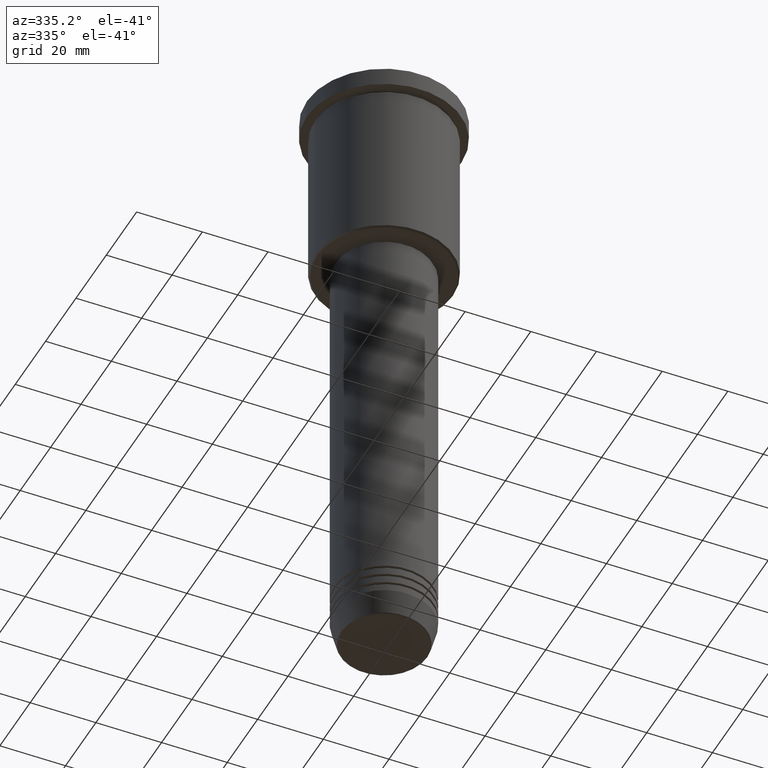
[diagram: clean part render]
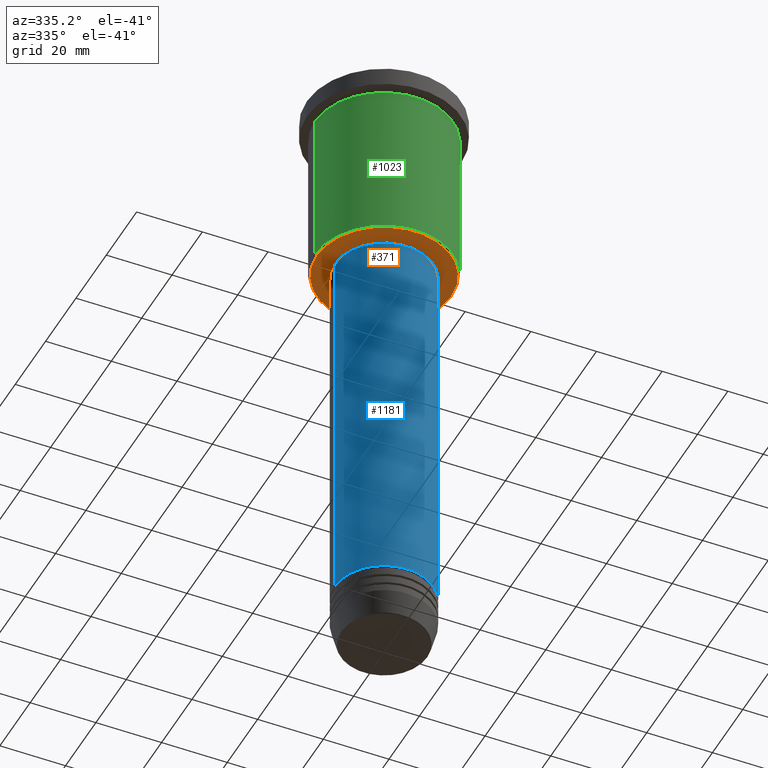
[diagram: same view with three faces highlighted in distinct colors, each labeled with its STEP entity id]
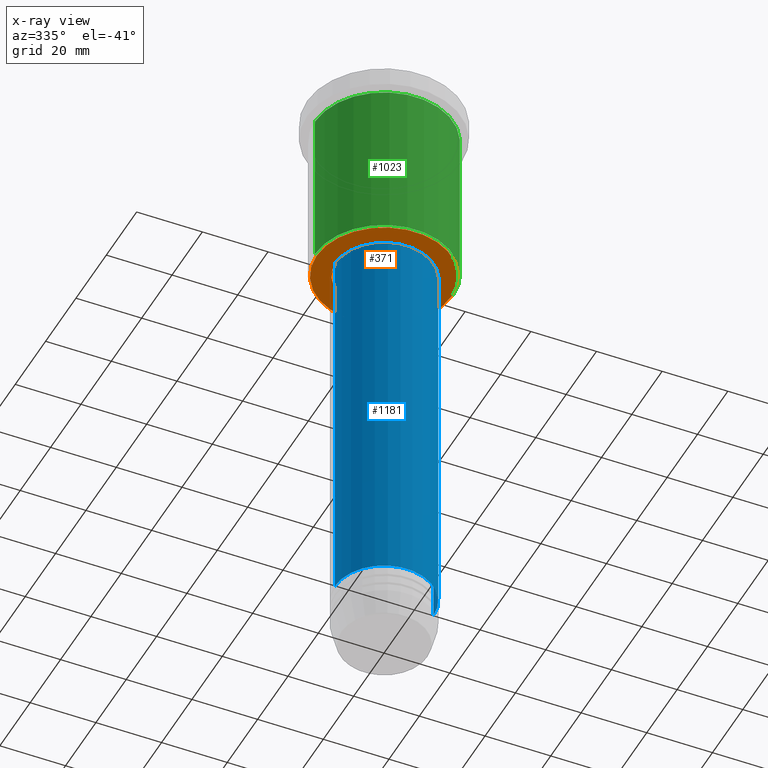
[diagram: x-ray of the same camera — body ghosted, the three highlighted faces saturated]
A machine part, auxiliary view with three faces highlighted in distinct colors.
The next image is the same camera in x-ray (body ghosted, the three faces saturated) — at least one of them is partly hidden behind the body in this view.
Their STEP definitions:

[orange] entity #371 — the highlighted planar face has unit normal (0, 0, -1).
#12 = EDGE_CURVE ( 'NONE', #455, #1165, #1139, .T. ) ;
#41 = CARTESIAN_POINT ( 'NONE',  ( 0.000000000000000000, 0.000000000000000000, -56.00000000000000711 ) ) ;
#57 = CARTESIAN_POINT ( 'NONE',  ( 0.000000000000000000, 0.000000000000000000, -56.00000000000000711 ) ) ;
#120 = DIRECTION ( 'NONE',  ( 1.000000000000000000, 0.000000000000000000, 0.000000000000000000 ) ) ;
#142 = DIRECTION ( 'NONE',  ( -1.000000000000000000, 0.000000000000000000, 0.000000000000000000 ) ) ;
#186 = AXIS2_PLACEMENT_3D ( 'NONE', #41, #659, #216 ) ;
#216 = DIRECTION ( 'NONE',  ( 1.000000000000000000, 0.000000000000000000, 0.000000000000000000 ) ) ;
#220 = ORIENTED_EDGE ( 'NONE', *, *, #287, .T. ) ;
#238 = DIRECTION ( 'NONE',  ( 0.000000000000000000, 0.000000000000000000, -1.000000000000000000 ) ) ;
#246 = CARTESIAN_POINT ( 'NONE',  ( 0.000000000000000000, 0.000000000000000000, -56.00000000000000711 ) ) ;
#285 = CIRCLE ( 'NONE', #608, 14.49999999999999822 ) ;
#287 = EDGE_CURVE ( 'NONE', #1109, #933, #699, .T. ) ;
#290 = EDGE_LOOP ( 'NONE', ( #365, #220 ) ) ;
#338 = DIRECTION ( 'NONE',  ( 0.000000000000000000, 0.000000000000000000, -1.000000000000000000 ) ) ;
#341 = DIRECTION ( 'NONE',  ( -1.000000000000000000, 0.000000000000000000, 0.000000000000000000 ) ) ;
#365 = ORIENTED_EDGE ( 'NONE', *, *, #1037, .T. ) ;
#371 = ADVANCED_FACE ( 'NONE', ( #949, #1018 ), #492, .T. ) ;
#449 = EDGE_CURVE ( 'NONE', #1165, #455, #925, .T. ) ;
#455 = VERTEX_POINT ( 'NONE', #782 ) ;
#492 = PLANE ( 'NONE',  #1057 ) ;
#564 = DIRECTION ( 'NONE',  ( -0.000000000000000000, -0.000000000000000000, 1.000000000000000000 ) ) ;
#585 = AXIS2_PLACEMENT_3D ( 'NONE', #57, #338, #142 ) ;
#608 = AXIS2_PLACEMENT_3D ( 'NONE', #726, #564, #120 ) ;
#611 = CARTESIAN_POINT ( 'NONE',  ( 14.49999999999999822, 0.000000000000000000, -56.00000000000000711 ) ) ;
#641 = ORIENTED_EDGE ( 'NONE', *, *, #449, .T. ) ;
#659 = DIRECTION ( 'NONE',  ( -0.000000000000000000, -0.000000000000000000, 1.000000000000000000 ) ) ;
#699 = CIRCLE ( 'NONE', #186, 14.49999999999999822 ) ;
#726 = CARTESIAN_POINT ( 'NONE',  ( 0.000000000000000000, 0.000000000000000000, -56.00000000000000711 ) ) ;
#777 = AXIS2_PLACEMENT_3D ( 'NONE', #246, #238, #341 ) ;
#782 = CARTESIAN_POINT ( 'NONE',  ( 20.50000000000001776, 0.000000000000000000, -56.00000000000000711 ) ) ;
#802 = DIRECTION ( 'NONE',  ( -1.000000000000000000, 0.000000000000000000, -0.000000000000000000 ) ) ;
#860 = CARTESIAN_POINT ( 'NONE',  ( 0.000000000000000000, 21.00000000000000000, -56.00000000000000711 ) ) ;
#925 = CIRCLE ( 'NONE', #585, 20.50000000000001776 ) ;
#933 = VERTEX_POINT ( 'NONE', #611 ) ;
#949 = FACE_OUTER_BOUND ( 'NONE', #1154, .T. ) ;
#971 = ORIENTED_EDGE ( 'NONE', *, *, #12, .T. ) ;
#980 = CARTESIAN_POINT ( 'NONE',  ( -14.49999999999999822, 1.775737858763662015E-15, -56.00000000000000711 ) ) ;
#1018 = FACE_BOUND ( 'NONE', #290, .T. ) ;
#1037 = EDGE_CURVE ( 'NONE', #933, #1109, #285, .T. ) ;
#1057 = AXIS2_PLACEMENT_3D ( 'NONE', #860, #1163, #802 ) ;
#1109 = VERTEX_POINT ( 'NONE', #980 ) ;
#1130 = CARTESIAN_POINT ( 'NONE',  ( -20.50000000000001776, 2.541142108230759057E-15, -56.00000000000000711 ) ) ;
#1139 = CIRCLE ( 'NONE', #777, 20.50000000000001776 ) ;
#1154 = EDGE_LOOP ( 'NONE', ( #971, #641 ) ) ;
#1163 = DIRECTION ( 'NONE',  ( 0.000000000000000000, 0.000000000000000000, -1.000000000000000000 ) ) ;
#1165 = VERTEX_POINT ( 'NONE', #1130 ) ;

[blue] entity #1181 — the highlighted cylindrical surface (partial cylindrical patch) has radius 15 mm, axis along (-0, -0, 1).
#33 = CARTESIAN_POINT ( 'NONE',  ( 0.000000000000000000, 0.000000000000000000, 0.000000000000000000 ) ) ;
#38 = ORIENTED_EDGE ( 'NONE', *, *, #1075, .F. ) ;
#85 = DIRECTION ( 'NONE',  ( -0.000000000000000000, -0.000000000000000000, 1.000000000000000000 ) ) ;
#87 = EDGE_CURVE ( 'NONE', #346, #277, #272, .T. ) ;
#126 = LINE ( 'NONE', #315, #505 ) ;
#131 = CARTESIAN_POINT ( 'NONE',  ( 15.00000000000000000, 0.000000000000000000, -175.0000000000000000 ) ) ;
#172 = ORIENTED_EDGE ( 'NONE', *, *, #873, .T. ) ;
#208 = CIRCLE ( 'NONE', #468, 15.00000000000000000 ) ;
#221 = CYLINDRICAL_SURFACE ( 'NONE', #947, 15.00000000000000000 ) ;
#272 = LINE ( 'NONE', #645, #426 ) ;
#277 = VERTEX_POINT ( 'NONE', #1026 ) ;
#315 = CARTESIAN_POINT ( 'NONE',  ( -15.00000000000000000, 1.836970198721029589E-15, 0.000000000000000000 ) ) ;
#346 = VERTEX_POINT ( 'NONE', #131 ) ;
#350 = CARTESIAN_POINT ( 'NONE',  ( -15.00000000000000000, 1.836970198721029589E-15, -175.0000000000000000 ) ) ;
#412 = EDGE_LOOP ( 'NONE', ( #1164, #172, #556, #38 ) ) ;
#426 = VECTOR ( 'NONE', #1092, 1000.000000000000000 ) ;
#468 = AXIS2_PLACEMENT_3D ( 'NONE', #965, #958, #1049 ) ;
#501 = VERTEX_POINT ( 'NONE', #350 ) ;
#505 = VECTOR ( 'NONE', #1040, 1000.000000000000000 ) ;
#553 = VERTEX_POINT ( 'NONE', #983 ) ;
#556 = ORIENTED_EDGE ( 'NONE', *, *, #87, .T. ) ;
#593 = FACE_OUTER_BOUND ( 'NONE', #412, .T. ) ;
#634 = CARTESIAN_POINT ( 'NONE',  ( 0.000000000000000000, 0.000000000000000000, -57.00000000000001421 ) ) ;
#645 = CARTESIAN_POINT ( 'NONE',  ( 15.00000000000000000, 0.000000000000000000, 0.000000000000000000 ) ) ;
#663 = DIRECTION ( 'NONE',  ( 1.000000000000000000, 0.000000000000000000, 0.000000000000000000 ) ) ;
#873 = EDGE_CURVE ( 'NONE', #501, #346, #208, .T. ) ;
#911 = CIRCLE ( 'NONE', #1160, 15.00000000000000000 ) ;
#947 = AXIS2_PLACEMENT_3D ( 'NONE', #33, #951, #1051 ) ;
#951 = DIRECTION ( 'NONE',  ( -0.000000000000000000, -0.000000000000000000, 1.000000000000000000 ) ) ;
#958 = DIRECTION ( 'NONE',  ( -0.000000000000000000, -0.000000000000000000, 1.000000000000000000 ) ) ;
#965 = CARTESIAN_POINT ( 'NONE',  ( 0.000000000000000000, 0.000000000000000000, -175.0000000000000000 ) ) ;
#983 = CARTESIAN_POINT ( 'NONE',  ( -15.00000000000000000, 1.836970198721029589E-15, -57.00000000000001421 ) ) ;
#1026 = CARTESIAN_POINT ( 'NONE',  ( 15.00000000000000000, 0.000000000000000000, -57.00000000000001421 ) ) ;
#1040 = DIRECTION ( 'NONE',  ( -0.000000000000000000, -0.000000000000000000, 1.000000000000000000 ) ) ;
#1049 = DIRECTION ( 'NONE',  ( 1.000000000000000000, 0.000000000000000000, 0.000000000000000000 ) ) ;
#1051 = DIRECTION ( 'NONE',  ( 1.000000000000000000, 0.000000000000000000, 0.000000000000000000 ) ) ;
#1075 = EDGE_CURVE ( 'NONE', #553, #277, #911, .T. ) ;
#1092 = DIRECTION ( 'NONE',  ( -0.000000000000000000, -0.000000000000000000, 1.000000000000000000 ) ) ;
#1126 = EDGE_CURVE ( 'NONE', #501, #553, #126, .T. ) ;
#1160 = AXIS2_PLACEMENT_3D ( 'NONE', #634, #85, #663 ) ;
#1164 = ORIENTED_EDGE ( 'NONE', *, *, #1126, .F. ) ;
#1181 = ADVANCED_FACE ( 'NONE', ( #593 ), #221, .T. ) ;

[green] entity #1023 — the highlighted cylindrical surface (partial cylindrical patch) has radius 21 mm, axis along (-0, -0, 1).
#8 = AXIS2_PLACEMENT_3D ( 'NONE', #539, #463, #654 ) ;
#103 = LINE ( 'NONE', #1011, #681 ) ;
#127 = DIRECTION ( 'NONE',  ( -1.000000000000000000, 0.000000000000000000, 0.000000000000000000 ) ) ;
#154 = CARTESIAN_POINT ( 'NONE',  ( 21.00000000000000000, 0.000000000000000000, -6.999999999999994671 ) ) ;
#177 = EDGE_CURVE ( 'NONE', #1093, #450, #735, .T. ) ;
#199 = EDGE_CURVE ( 'NONE', #913, #1093, #103, .T. ) ;
#217 = VERTEX_POINT ( 'NONE', #476 ) ;
#249 = AXIS2_PLACEMENT_3D ( 'NONE', #353, #929, #270 ) ;
#270 = DIRECTION ( 'NONE',  ( 1.000000000000000000, 0.000000000000000000, 0.000000000000000000 ) ) ;
#349 = FACE_OUTER_BOUND ( 'NONE', #827, .T. ) ;
#353 = CARTESIAN_POINT ( 'NONE',  ( 0.000000000000000000, 0.000000000000000000, 0.000000000000000000 ) ) ;
#390 = ORIENTED_EDGE ( 'NONE', *, *, #199, .F. ) ;
#399 = EDGE_CURVE ( 'NONE', #217, #450, #805, .T. ) ;
#419 = DIRECTION ( 'NONE',  ( -0.000000000000000000, -0.000000000000000000, 1.000000000000000000 ) ) ;
#450 = VERTEX_POINT ( 'NONE', #154 ) ;
#460 = ORIENTED_EDGE ( 'NONE', *, *, #177, .F. ) ;
#463 = DIRECTION ( 'NONE',  ( -0.000000000000000000, -0.000000000000000000, 1.000000000000000000 ) ) ;
#466 = CYLINDRICAL_SURFACE ( 'NONE', #249, 21.00000000000000000 ) ;
#476 = CARTESIAN_POINT ( 'NONE',  ( 21.00000000000000000, 0.000000000000000000, -55.50000000000002132 ) ) ;
#539 = CARTESIAN_POINT ( 'NONE',  ( 0.000000000000000000, 0.000000000000000000, -6.999999999999994671 ) ) ;
#569 = DIRECTION ( 'NONE',  ( -0.000000000000000000, -0.000000000000000000, 1.000000000000000000 ) ) ;
#654 = DIRECTION ( 'NONE',  ( 1.000000000000000000, 0.000000000000000000, 0.000000000000000000 ) ) ;
#681 = VECTOR ( 'NONE', #991, 1000.000000000000000 ) ;
#735 = CIRCLE ( 'NONE', #8, 21.00000000000000000 ) ;
#752 = CARTESIAN_POINT ( 'NONE',  ( 0.000000000000000000, 0.000000000000000000, -55.50000000000002132 ) ) ;
#775 = EDGE_CURVE ( 'NONE', #913, #217, #1143, .T. ) ;
#794 = ORIENTED_EDGE ( 'NONE', *, *, #399, .T. ) ;
#805 = LINE ( 'NONE', #967, #1038 ) ;
#827 = EDGE_LOOP ( 'NONE', ( #390, #1094, #794, #460 ) ) ;
#899 = CARTESIAN_POINT ( 'NONE',  ( -21.00000000000000000, 2.571758278209441661E-15, -6.999999999999994671 ) ) ;
#913 = VERTEX_POINT ( 'NONE', #1136 ) ;
#929 = DIRECTION ( 'NONE',  ( -0.000000000000000000, -0.000000000000000000, 1.000000000000000000 ) ) ;
#964 = AXIS2_PLACEMENT_3D ( 'NONE', #752, #569, #127 ) ;
#967 = CARTESIAN_POINT ( 'NONE',  ( 21.00000000000000000, 0.000000000000000000, 0.000000000000000000 ) ) ;
#991 = DIRECTION ( 'NONE',  ( -0.000000000000000000, -0.000000000000000000, 1.000000000000000000 ) ) ;
#1011 = CARTESIAN_POINT ( 'NONE',  ( -21.00000000000000000, 2.571758278209441661E-15, 0.000000000000000000 ) ) ;
#1023 = ADVANCED_FACE ( 'NONE', ( #349 ), #466, .T. ) ;
#1038 = VECTOR ( 'NONE', #419, 1000.000000000000000 ) ;
#1093 = VERTEX_POINT ( 'NONE', #899 ) ;
#1094 = ORIENTED_EDGE ( 'NONE', *, *, #775, .T. ) ;
#1136 = CARTESIAN_POINT ( 'NONE',  ( -21.00000000000000000, 2.571758278209441661E-15, -55.50000000000002132 ) ) ;
#1143 = CIRCLE ( 'NONE', #964, 21.00000000000000000 ) ;